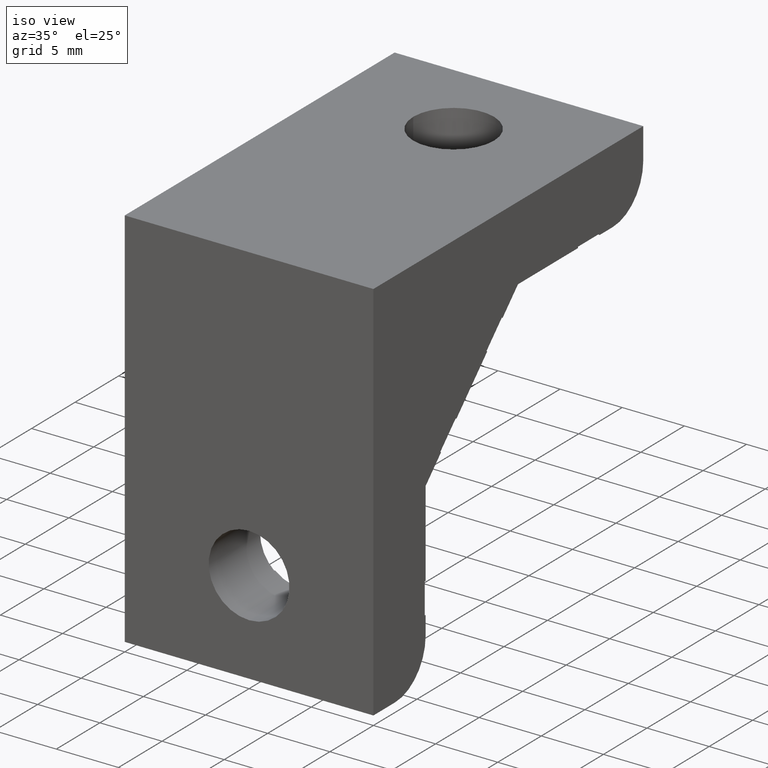
[diagram: clean part render]
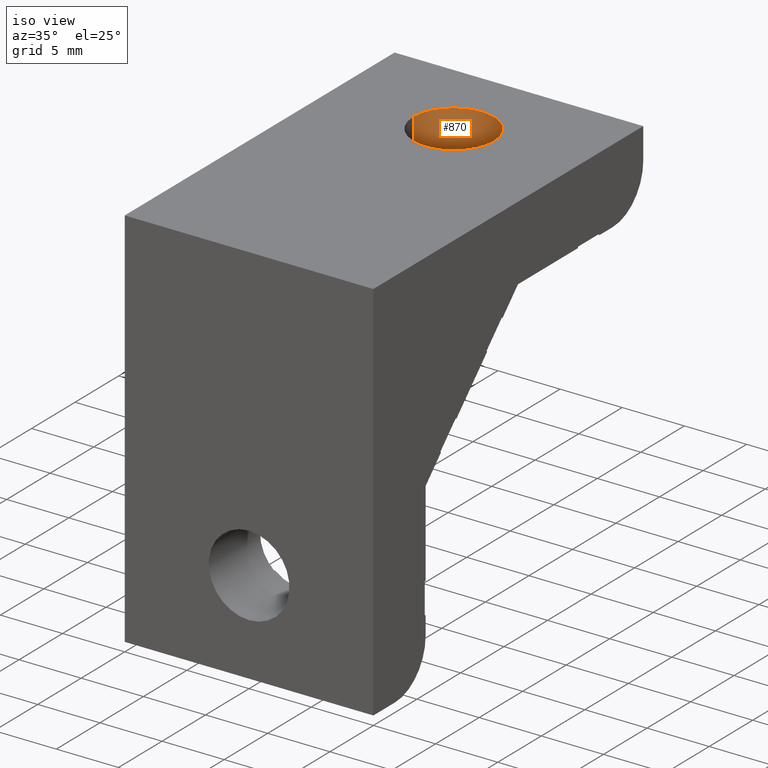
[diagram: same view with one face highlighted and labeled with its STEP entity id]
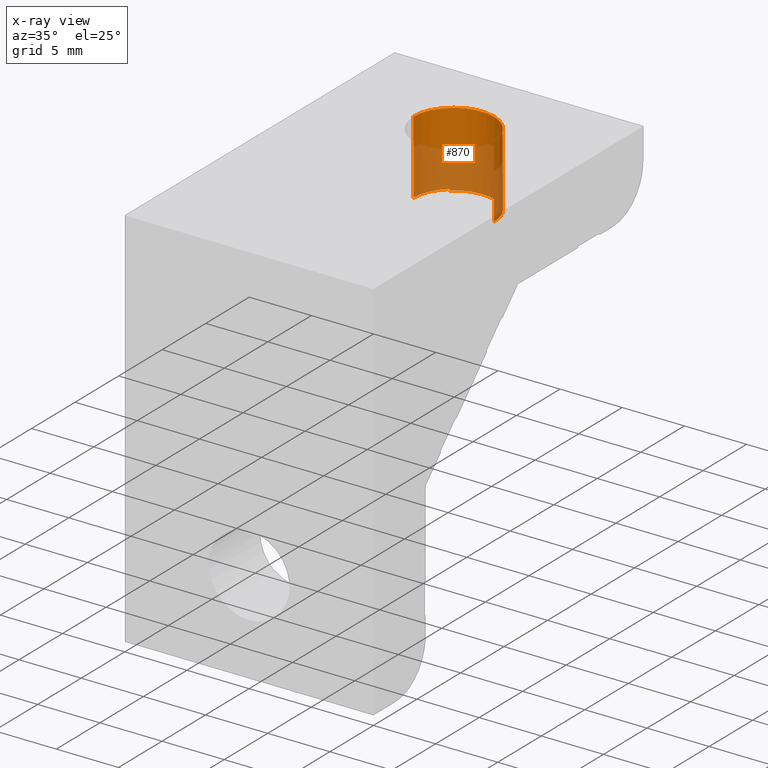
[diagram: x-ray of the same camera — body ghosted, the highlighted face saturated]
A machine part, iso view. The second image highlights one B-rep face of the part: STEP entity #870.
The next image is the same camera in x-ray: the body ghosted, the highlighted face saturated — about 55% of this face is hidden behind the body in this view.
In plain terms, the highlighted cylindrical surface (partial cylindrical patch) has radius 3.25 mm, axis along (0, 0, -1).
Its self-contained STEP definition (entity closure, byte-faithful):
#22 = ORIENTED_EDGE ( 'NONE', *, *, #275, .T. ) ;
#23 = ORIENTED_EDGE ( 'NONE', *, *, #1309, .T. ) ;
#24 = ORIENTED_EDGE ( 'NONE', *, *, #274, .T. ) ;
#25 = ORIENTED_EDGE ( 'NONE', *, *, #283, .T. ) ;
#26 = ORIENTED_EDGE ( 'NONE', *, *, #273, .T. ) ;
#27 = ORIENTED_EDGE ( 'NONE', *, *, #279, .T. ) ;
#29 = ORIENTED_EDGE ( 'NONE', *, *, #276, .T. ) ;
#111 = LINE ( 'NONE', #638, #112 ) ;
#112 = VECTOR ( 'NONE', #639, 1000.000000000000000 ) ;
#236 = CIRCLE ( 'NONE', #296, 3.249999999999999600 ) ;
#237 = CIRCLE ( 'NONE', #297, 3.249999999999999600 ) ;
#238 = CIRCLE ( 'NONE', #298, 3.249999999999999600 ) ;
#240 = CIRCLE ( 'NONE', #299, 3.249999999999999600 ) ;
#244 = LINE ( 'NONE', #630, #245 ) ;
#245 = VECTOR ( 'NONE', #631, 1000.000000000000000 ) ;
#273 = EDGE_CURVE ( 'NONE', #1086, #1087, #236, .T. ) ;
#274 = EDGE_CURVE ( 'NONE', #1041, #1085, #237, .T. ) ;
#275 = EDGE_CURVE ( 'NONE', #1044, #1040, #238, .T. ) ;
#276 = EDGE_CURVE ( 'NONE', #1088, #1039, #240, .T. ) ;
#279 = EDGE_CURVE ( 'NONE', #1087, #1088, #244, .T. ) ;
#283 = EDGE_CURVE ( 'NONE', #1085, #1086, #111, .T. ) ;
#296 = AXIS2_PLACEMENT_3D ( 'NONE', #614, #615, #616 ) ;
#297 = AXIS2_PLACEMENT_3D ( 'NONE', #617, #618, #619 ) ;
#298 = AXIS2_PLACEMENT_3D ( 'NONE', #620, #621, #622 ) ;
#299 = AXIS2_PLACEMENT_3D ( 'NONE', #623, #624, #625 ) ;
#335 = CARTESIAN_POINT ( 'NONE',  ( 7.923344034135242400, 26.00000000000000400, -5.899999999000000300 ) ) ;
#336 = CARTESIAN_POINT ( 'NONE',  ( 7.923344034135242400, 26.00000000000000400, -6.000000000000000000 ) ) ;
#337 = CARTESIAN_POINT ( 'NONE',  ( 12.07665596586475800, 26.00000000000000400, -6.000000000000000000 ) ) ;
#338 = CARTESIAN_POINT ( 'NONE',  ( 12.07665596586475800, 26.00000000000000400, -5.899999999000000300 ) ) ;
#373 = CARTESIAN_POINT ( 'NONE',  ( 6.750000000000000900, 23.50000000000000000, 0.0000000000000000000 ) ) ;
#374 = DIRECTION ( 'NONE',  ( 0.0000000000000000000, 0.0000000000000000000, -1.000000000000000000 ) ) ;
#381 = CARTESIAN_POINT ( 'NONE',  ( 13.25000000000000000, 23.50000000000000000, 0.0000000000000000000 ) ) ;
#382 = DIRECTION ( 'NONE',  ( 0.0000000000000000000, 0.0000000000000000000, -1.000000000000000000 ) ) ;
#493 = CARTESIAN_POINT ( 'NONE',  ( 10.00000000000000000, 23.50000000000000000, 0.0000000000000000000 ) ) ;
#494 = DIRECTION ( 'NONE',  ( 0.0000000000000000000, 0.0000000000000000000, -1.000000000000000000 ) ) ;
#495 = DIRECTION ( 'NONE',  ( -1.000000000000000000, 0.0000000000000000000, 0.0000000000000000000 ) ) ;
#549 = CARTESIAN_POINT ( 'NONE',  ( 13.25000000000000000, 23.50000000000000000, -5.899999999000000300 ) ) ;
#550 = CARTESIAN_POINT ( 'NONE',  ( 6.750000000000000900, 23.50000000000000000, 0.0000000000000000000 ) ) ;
#551 = CARTESIAN_POINT ( 'NONE',  ( 6.750000000000000900, 23.50000000000000000, -5.899999999000000300 ) ) ;
#554 = CARTESIAN_POINT ( 'NONE',  ( 13.25000000000000000, 23.50000000000000000, 0.0000000000000000000 ) ) ;
#614 = CARTESIAN_POINT ( 'NONE',  ( 10.00000000000000000, 23.50000000000000000, -6.000000000000000000 ) ) ;
#615 = DIRECTION ( 'NONE',  ( 0.0000000000000000000, 0.0000000000000000000, -1.000000000000000000 ) ) ;
#616 = DIRECTION ( 'NONE',  ( -1.000000000000000000, 0.0000000000000000000, 0.0000000000000000000 ) ) ;
#617 = CARTESIAN_POINT ( 'NONE',  ( 10.00000000000000000, 23.50000000000000000, -5.899999998000000200 ) ) ;
#618 = DIRECTION ( 'NONE',  ( 0.0000000000000000000, 0.0000000000000000000, -1.000000000000000000 ) ) ;
#619 = DIRECTION ( 'NONE',  ( -1.000000000000000000, 0.0000000000000000000, 0.0000000000000000000 ) ) ;
#620 = CARTESIAN_POINT ( 'NONE',  ( 10.00000000000000000, 23.50000000000000000, 0.0000000000000000000 ) ) ;
#621 = DIRECTION ( 'NONE',  ( -0.0000000000000000000, -0.0000000000000000000, 1.000000000000000000 ) ) ;
#622 = DIRECTION ( 'NONE',  ( -1.000000000000000000, 0.0000000000000000000, 0.0000000000000000000 ) ) ;
#623 = CARTESIAN_POINT ( 'NONE',  ( 10.00000000000000000, 23.50000000000000000, -5.899999998000000200 ) ) ;
#624 = DIRECTION ( 'NONE',  ( 0.0000000000000000000, 0.0000000000000000000, -1.000000000000000000 ) ) ;
#625 = DIRECTION ( 'NONE',  ( -1.000000000000000000, 0.0000000000000000000, 0.0000000000000000000 ) ) ;
#630 = CARTESIAN_POINT ( 'NONE',  ( 12.07665596600000100, 26.00000000000000400, -5.950000000000000200 ) ) ;
#631 = DIRECTION ( 'NONE',  ( 0.0000000000000000000, 0.0000000000000000000, 1.000000000000000000 ) ) ;
#638 = CARTESIAN_POINT ( 'NONE',  ( 7.923344034000001200, 26.00000000000000400, -5.950000000000000200 ) ) ;
#639 = DIRECTION ( 'NONE',  ( -0.0000000000000000000, -0.0000000000000000000, -1.000000000000000000 ) ) ;
#729 = LINE ( 'NONE', #373, #731 ) ;
#731 = VECTOR ( 'NONE', #374, 1000.000000000000000 ) ;
#738 = LINE ( 'NONE', #381, #739 ) ;
#739 = VECTOR ( 'NONE', #382, 1000.000000000000000 ) ;
#829 = AXIS2_PLACEMENT_3D ( 'NONE', #493, #494, #495 ) ;
#870 = ADVANCED_FACE ( 'NONE', ( #891 ), #892, .F. ) ;
#891 = FACE_OUTER_BOUND ( 'NONE', #1186, .T. ) ;
#892 = CYLINDRICAL_SURFACE ( 'NONE', #829, 3.249999999999999600 ) ;
#1019 = ORIENTED_EDGE ( 'NONE', *, *, #1313, .F. ) ;
#1039 = VERTEX_POINT ( 'NONE', #549 ) ;
#1040 = VERTEX_POINT ( 'NONE', #550 ) ;
#1041 = VERTEX_POINT ( 'NONE', #551 ) ;
#1044 = VERTEX_POINT ( 'NONE', #554 ) ;
#1085 = VERTEX_POINT ( 'NONE', #335 ) ;
#1086 = VERTEX_POINT ( 'NONE', #336 ) ;
#1087 = VERTEX_POINT ( 'NONE', #337 ) ;
#1088 = VERTEX_POINT ( 'NONE', #338 ) ;
#1186 = EDGE_LOOP ( 'NONE', ( #1019, #22, #23, #24, #25, #26, #27, #29 ) ) ;
#1309 = EDGE_CURVE ( 'NONE', #1040, #1041, #729, .T. ) ;
#1313 = EDGE_CURVE ( 'NONE', #1044, #1039, #738, .T. ) ;